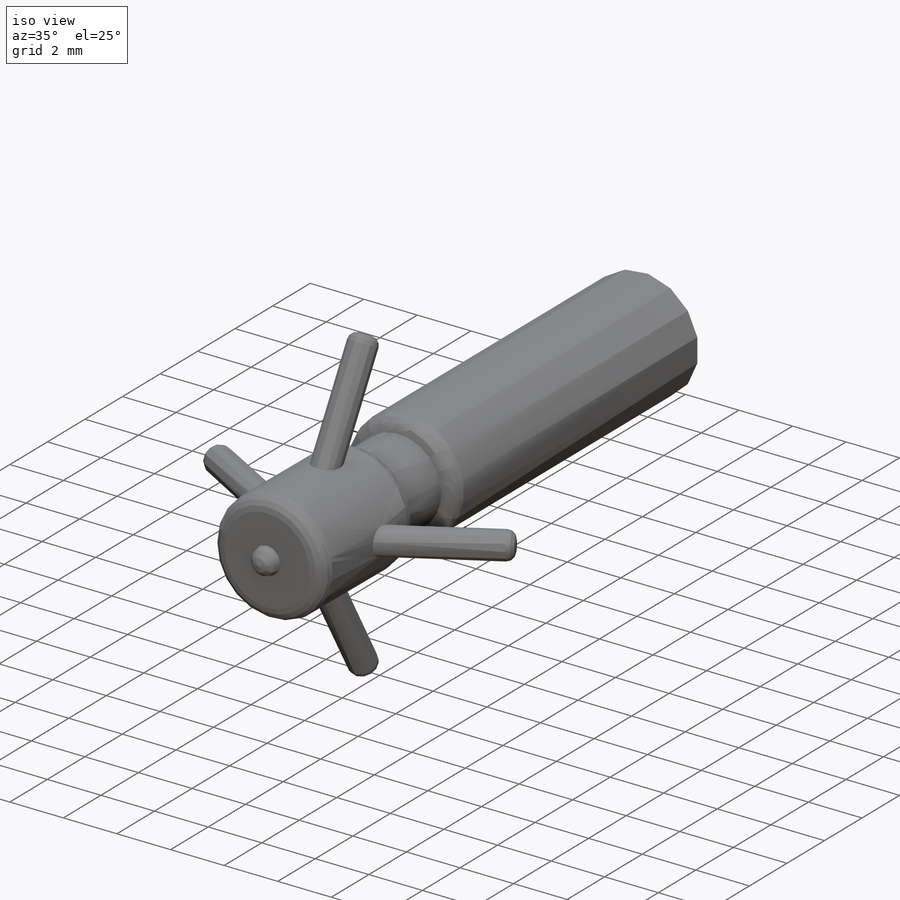
[diagram: iso view]
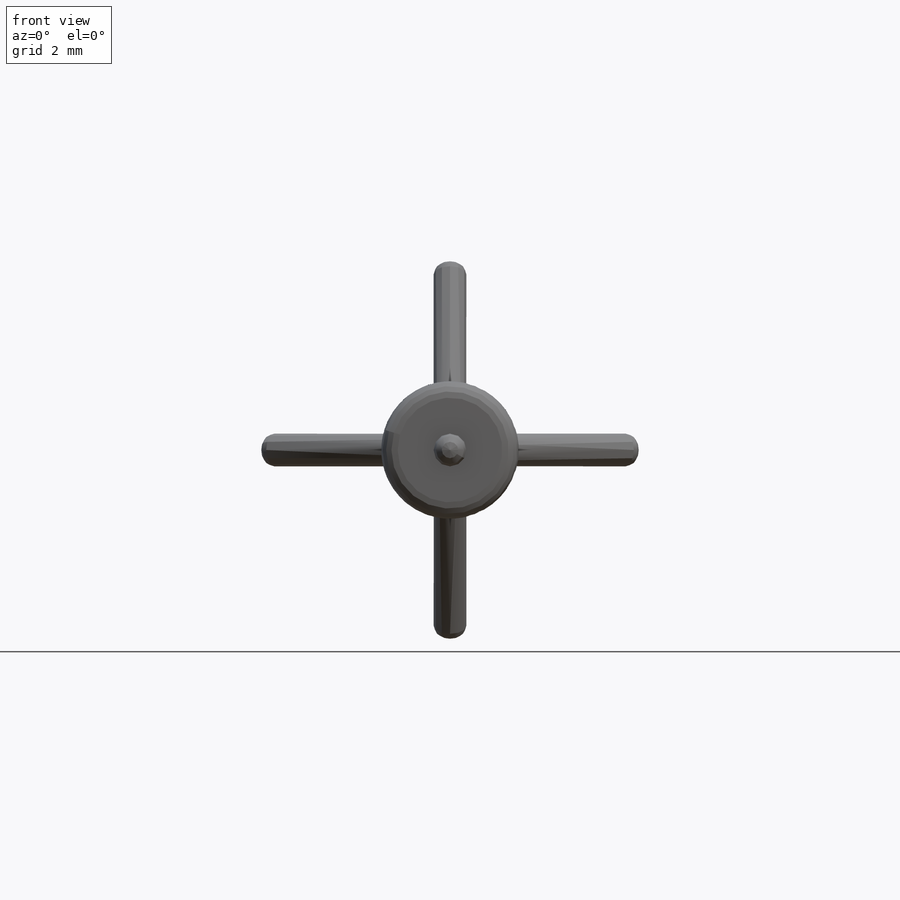
[diagram: front view]
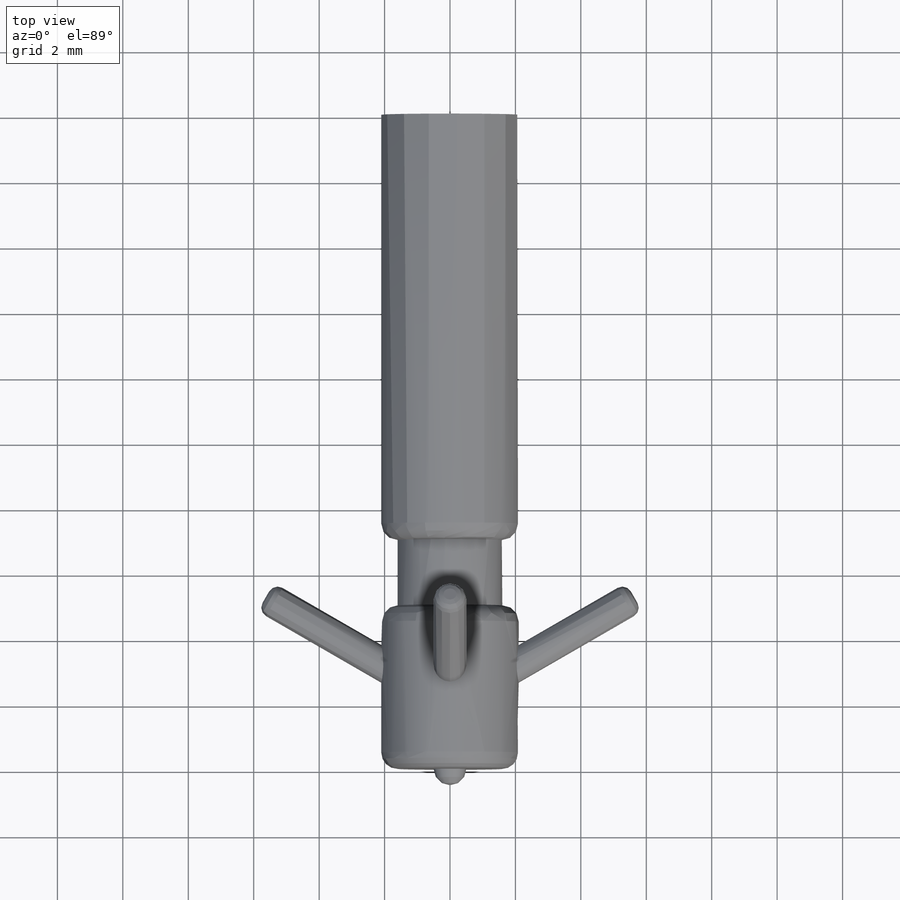
[diagram: top view]
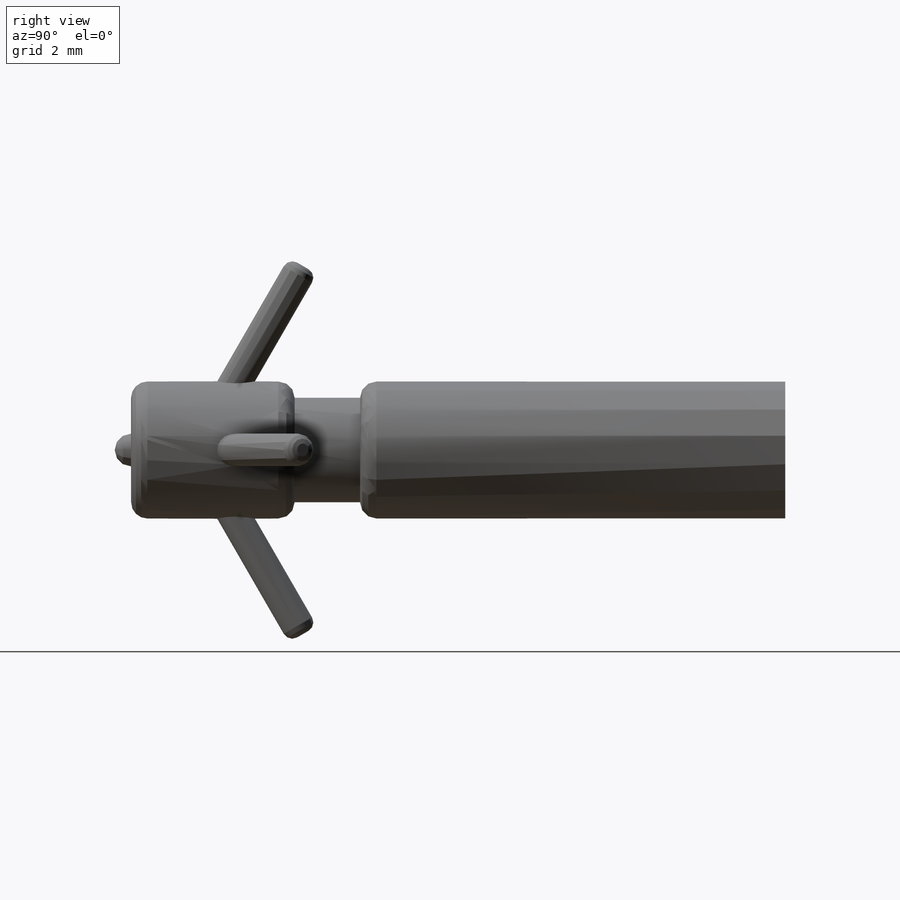
[diagram: right view]
SOLIDWORKS PART (.sldprt)
format: sldprt  version: not decoded by parser v0  size: 237,568 bytes
history: native  units: mm
features: sketch x2, revolve x2, fillet x2, material x1, pattern_circular x1 (+14 scaffold rows collapsed)
feature tree (22):
  scaffold x14  (default folders/planes/origin — collapsed)
  material  "Material <not specified>"
  sketch  "Sketch1"  dims[c1.radius=0.5mm c1.D7=0.5mm c1.D1=2.1mm c1.D2=20.0mm c1.D3=0.5mm c1.D4=2.0mm c1.position=5.0mm c2.D2=20.0mm]
  revolve  "Revolve1"  Angle=360deg
  fillet  "Fillet1"  Radius=0.5mm
  sketch  "Sketch2"  dims[c1.D1=~4.592084mm c2.D1=60.0deg c2.D2=6.5mm c2.D3=0.5mm c2.D4=2.0mm]
  revolve  "Revolve2"  Angle=360deg
  fillet  "Fillet2"  Radius=0.3mm
  pattern_circular  "CirPattern1"  Count=4 Angle=360deg
decode coverage: 7 of 7 modeling features carry decoded parameters
note: ~ marks probable driven/reference dimensions
note: suppression state not decoded; provenance and decode notes live in map.json
